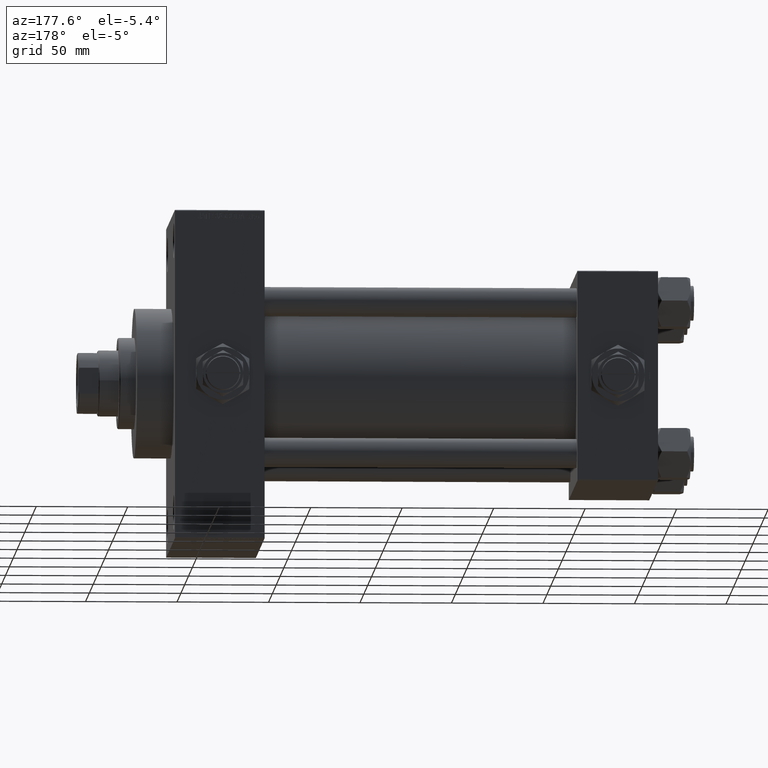
[diagram: clean part render]
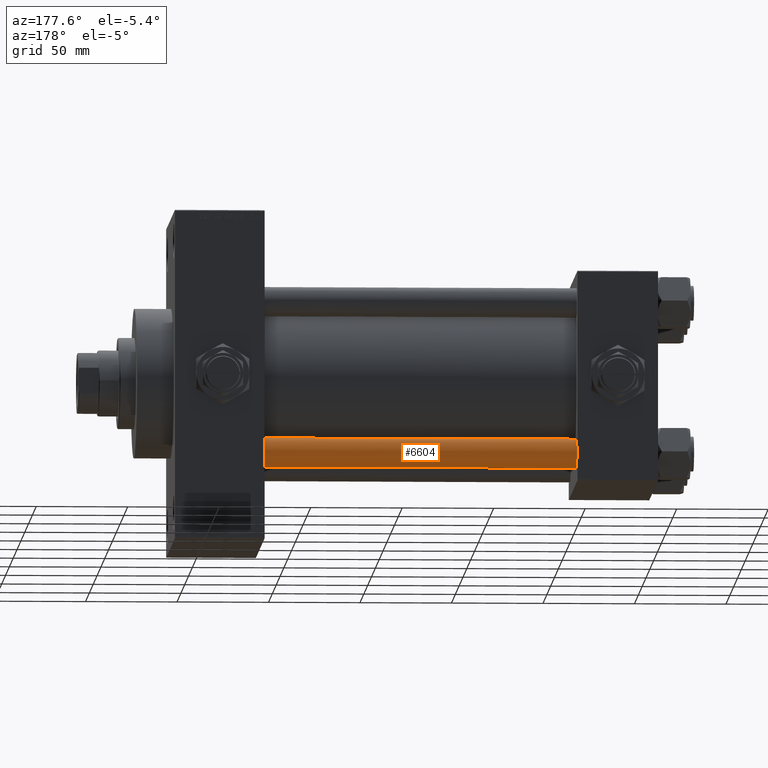
[diagram: same view with one face highlighted and labeled with its STEP entity id]
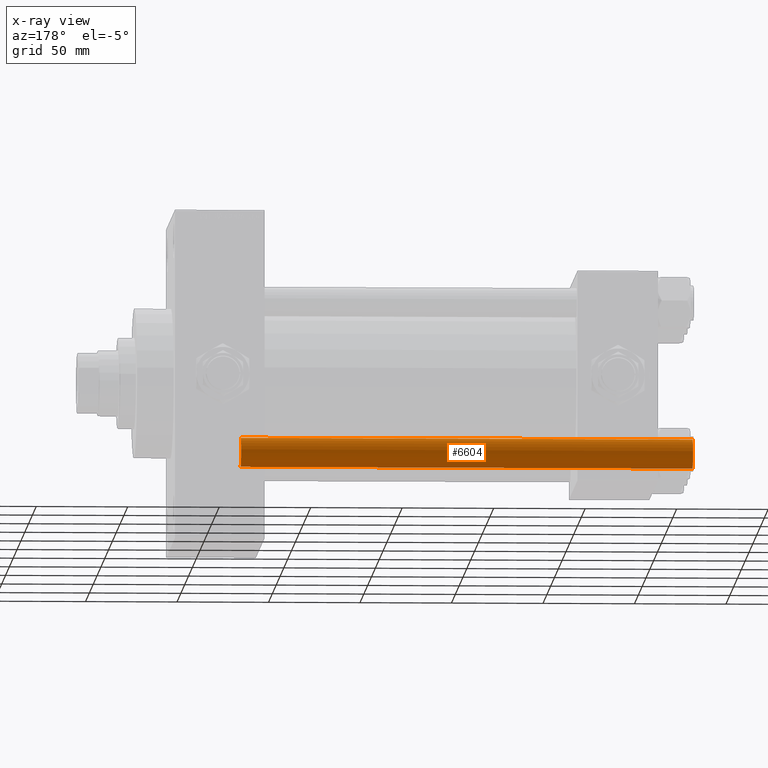
[diagram: x-ray of the same camera — body ghosted, the highlighted face saturated]
A machine part, auxiliary view. The second image highlights one B-rep face of the part: STEP entity #6604.
The next image is the same camera in x-ray: the body ghosted, the highlighted face saturated — about 0% of this face is hidden behind the body in this view.
In plain terms, the highlighted cylindrical surface (edge-blend (fillet) strip) has radius 8 mm, axis along (1, -0, 0).
Its self-contained STEP definition (entity closure, byte-faithful):
#192 = EDGE_CURVE ( 'NONE', #25960, #26557, #3491, .T. ) ;
#3491 = CIRCLE ( 'NONE', #32461, 8.000000000000000000 ) ;
#6205 = CIRCLE ( 'NONE', #47232, 8.000000000000000000 ) ;
#6604 = ADVANCED_FACE ( 'NONE', ( #16152 ), #35805, .T. ) ;
#7101 = CARTESIAN_POINT ( 'NONE',  ( 0.000000000000000000, 0.000000000000000000, 247.5000000000000284 ) ) ;
#7416 = CARTESIAN_POINT ( 'NONE',  ( 8.000000000000000000, 9.797174393178825657E-16, 0.4999999999999726885 ) ) ;
#9572 = EDGE_LOOP ( 'NONE', ( #20431, #11153, #20808, #37968 ) ) ;
#10859 = VERTEX_POINT ( 'NONE', #47434 ) ;
#11153 = ORIENTED_EDGE ( 'NONE', *, *, #29308, .T. ) ;
#11668 = AXIS2_PLACEMENT_3D ( 'NONE', #32274, #31786, #35549 ) ;
#11949 = LINE ( 'NONE', #19239, #42419 ) ;
#13845 = CARTESIAN_POINT ( 'NONE',  ( -8.000000000000000000, 0.000000000000000000, 0.4999999999999726885 ) ) ;
#14490 = CARTESIAN_POINT ( 'NONE',  ( 0.000000000000000000, 0.000000000000000000, 0.4999999999999726885 ) ) ;
#14558 = LINE ( 'NONE', #37964, #41255 ) ;
#16152 = FACE_OUTER_BOUND ( 'NONE', #9572, .T. ) ;
#19239 = CARTESIAN_POINT ( 'NONE',  ( 8.000000000000000000, 9.797174393178825657E-16, 248.0000000000000000 ) ) ;
#20431 = ORIENTED_EDGE ( 'NONE', *, *, #29805, .T. ) ;
#20808 = ORIENTED_EDGE ( 'NONE', *, *, #192, .T. ) ;
#23211 = DIRECTION ( 'NONE',  ( 1.000000000000000000, 0.000000000000000000, 0.000000000000000000 ) ) ;
#25960 = VERTEX_POINT ( 'NONE', #7416 ) ;
#26557 = VERTEX_POINT ( 'NONE', #13845 ) ;
#29308 = EDGE_CURVE ( 'NONE', #40684, #25960, #11949, .T. ) ;
#29805 = EDGE_CURVE ( 'NONE', #10859, #40684, #6205, .T. ) ;
#30766 = DIRECTION ( 'NONE',  ( 0.000000000000000000, 0.000000000000000000, -1.000000000000000000 ) ) ;
#31786 = DIRECTION ( 'NONE',  ( -0.000000000000000000, -0.000000000000000000, -1.000000000000000000 ) ) ;
#32274 = CARTESIAN_POINT ( 'NONE',  ( 0.000000000000000000, 0.000000000000000000, 248.0000000000000000 ) ) ;
#32461 = AXIS2_PLACEMENT_3D ( 'NONE', #14490, #49239, #44967 ) ;
#34214 = DIRECTION ( 'NONE',  ( -0.000000000000000000, -0.000000000000000000, -1.000000000000000000 ) ) ;
#35549 = DIRECTION ( 'NONE',  ( -1.000000000000000000, 0.000000000000000000, 0.000000000000000000 ) ) ;
#35805 = CYLINDRICAL_SURFACE ( 'NONE', #11668, 8.000000000000000000 ) ;
#37964 = CARTESIAN_POINT ( 'NONE',  ( -8.000000000000000000, 0.000000000000000000, 248.0000000000000000 ) ) ;
#37968 = ORIENTED_EDGE ( 'NONE', *, *, #41860, .F. ) ;
#40684 = VERTEX_POINT ( 'NONE', #49180 ) ;
#41255 = VECTOR ( 'NONE', #34214, 1000.000000000000000 ) ;
#41860 = EDGE_CURVE ( 'NONE', #10859, #26557, #14558, .T. ) ;
#42419 = VECTOR ( 'NONE', #42899, 1000.000000000000000 ) ;
#42899 = DIRECTION ( 'NONE',  ( -0.000000000000000000, -0.000000000000000000, -1.000000000000000000 ) ) ;
#44967 = DIRECTION ( 'NONE',  ( 1.000000000000000000, 0.000000000000000000, 0.000000000000000000 ) ) ;
#47232 = AXIS2_PLACEMENT_3D ( 'NONE', #7101, #30766, #23211 ) ;
#47434 = CARTESIAN_POINT ( 'NONE',  ( -8.000000000000000000, 0.000000000000000000, 247.5000000000000284 ) ) ;
#49180 = CARTESIAN_POINT ( 'NONE',  ( 8.000000000000000000, 9.797174393178825657E-16, 247.5000000000000284 ) ) ;
#49239 = DIRECTION ( 'NONE',  ( -0.000000000000000000, -0.000000000000000000, 1.000000000000000000 ) ) ;